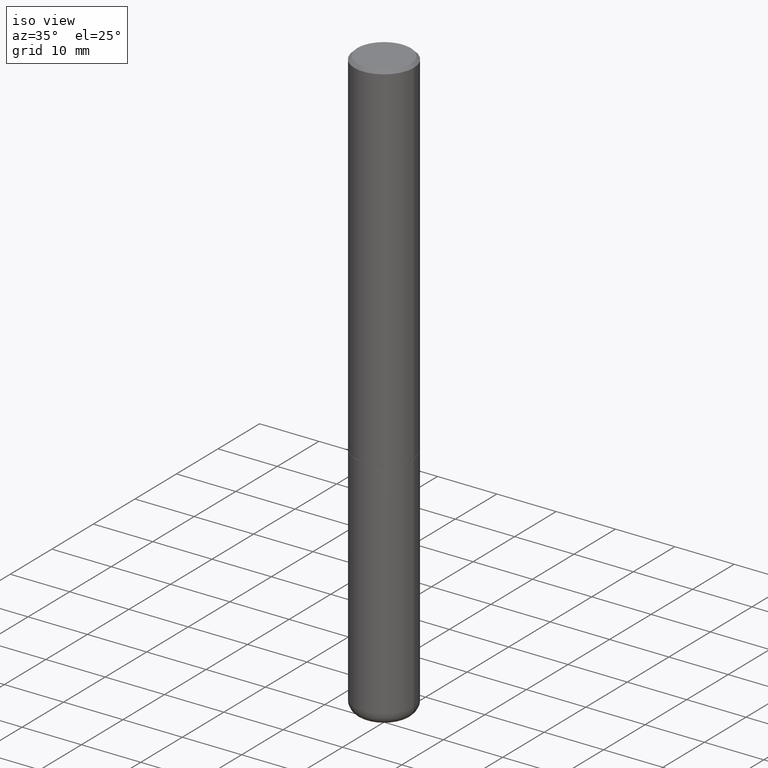
[diagram: clean part render]
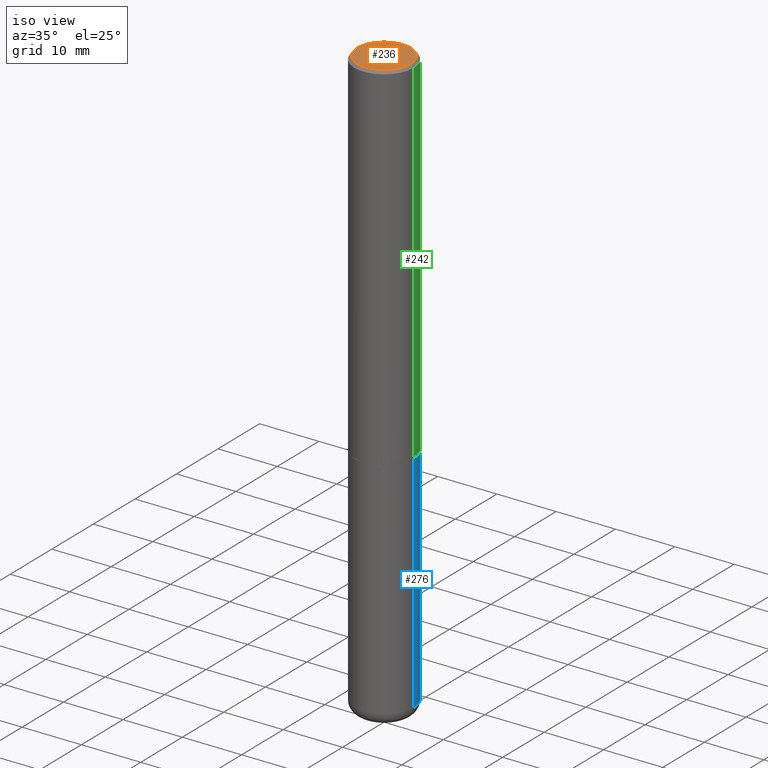
[diagram: same view with three faces highlighted in distinct colors, each labeled with its STEP entity id]
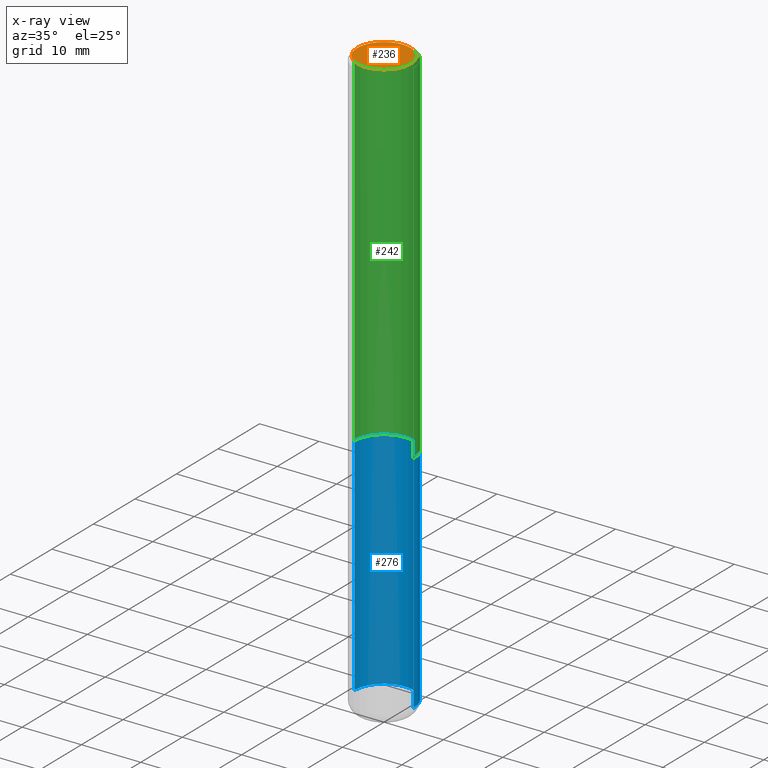
[diagram: x-ray of the same camera — body ghosted, the three highlighted faces saturated]
A machine part, iso view with three faces highlighted in distinct colors.
The next image is the same camera in x-ray (body ghosted, the three faces saturated) — at least one of them is partly hidden behind the body in this view.
Their STEP definitions:

[orange] entity #236 — the highlighted planar face has unit normal (0, -0, -1).
#23 = EDGE_CURVE ( 'NONE', #159, #183, #305, .T. ) ;
#37 = ORIENTED_EDGE ( 'NONE', *, *, #23, .T. ) ;
#50 = FACE_OUTER_BOUND ( 'NONE', #95, .T. ) ;
#56 = CARTESIAN_POINT ( 'NONE',  ( -0.1768500000000000905, 1.269851762937247647E-15, -6.402768735151492985E-17 ) ) ;
#68 = AXIS2_PLACEMENT_3D ( 'NONE', #315, #318, #348 ) ;
#77 = AXIS2_PLACEMENT_3D ( 'NONE', #170, #134, #398 ) ;
#87 = EDGE_CURVE ( 'NONE', #183, #159, #120, .T. ) ;
#95 = EDGE_LOOP ( 'NONE', ( #413, #37 ) ) ;
#120 = CIRCLE ( 'NONE', #365, 0.1768500000000000905 ) ;
#134 = DIRECTION ( 'NONE',  ( 2.438088387897960049E-29, -3.491481338843145188E-15, -1.000000000000000000 ) ) ;
#159 = VERTEX_POINT ( 'NONE', #198 ) ;
#170 = CARTESIAN_POINT ( 'NONE',  ( 1.234936949548816787E-15, 0.1768500000000000905, -6.494823184501636643E-16 ) ) ;
#179 = CARTESIAN_POINT ( 'NONE',  ( 1.565777121502829671E-45, -2.235514755570671047E-31, -6.402768735150616610E-17 ) ) ;
#183 = VERTEX_POINT ( 'NONE', #56 ) ;
#198 = CARTESIAN_POINT ( 'NONE',  ( 0.1768500000000000905, -1.316798864272042535E-15, -6.402768735149724211E-17 ) ) ;
#236 = ADVANCED_FACE ( 'NONE', ( #50 ), #254, .F. ) ;
#254 = PLANE ( 'NONE',  #77 ) ;
#270 = DIRECTION ( 'NONE',  ( 1.000000000000000000, -6.982962677686267499E-15, 4.874860244052827406E-29 ) ) ;
#304 = DIRECTION ( 'NONE',  ( -2.445468806185136597E-29, 3.491481338843145583E-15, 1.000000000000000000 ) ) ;
#305 = CIRCLE ( 'NONE', #68, 0.1768500000000000905 ) ;
#315 = CARTESIAN_POINT ( 'NONE',  ( 1.565777121502829671E-45, -2.235514755570671047E-31, -6.402768735150616610E-17 ) ) ;
#318 = DIRECTION ( 'NONE',  ( -2.445468806185136597E-29, 3.491481338843145583E-15, 1.000000000000000000 ) ) ;
#348 = DIRECTION ( 'NONE',  ( 1.000000000000000000, -6.982962677686267499E-15, 4.874860244052827406E-29 ) ) ;
#365 = AXIS2_PLACEMENT_3D ( 'NONE', #179, #304, #270 ) ;
#398 = DIRECTION ( 'NONE',  ( -1.000000000000000000, 6.982962677686265922E-15, -4.876176775795935793E-29 ) ) ;
#413 = ORIENTED_EDGE ( 'NONE', *, *, #87, .T. ) ;

[blue] entity #276 — the highlighted cylindrical surface (edge-blend (fillet) strip) has radius 5 mm, axis along (-0, 0, 1).
#6 = CARTESIAN_POINT ( 'NONE',  ( 0.1968500000000000250, -1.374596203102541608E-15, 9.598753983154300858E-30 ) ) ;
#28 = LINE ( 'NONE', #152, #395 ) ;
#29 = CARTESIAN_POINT ( 'NONE',  ( -0.1968500000000000250, -9.460676458793135485E-15, -2.362200000000000077 ) ) ;
#46 = VERTEX_POINT ( 'NONE', #246 ) ;
#65 = DIRECTION ( 'NONE',  ( -2.445468806185136597E-29, 3.491481338843145583E-15, 1.000000000000000000 ) ) ;
#90 = EDGE_CURVE ( 'NONE', #99, #162, #28, .T. ) ;
#92 = AXIS2_PLACEMENT_3D ( 'NONE', #147, #227, #363 ) ;
#99 = VERTEX_POINT ( 'NONE', #116 ) ;
#101 = LINE ( 'NONE', #6, #126 ) ;
#102 = DIRECTION ( 'NONE',  ( -2.445468806185136597E-29, 3.491481338843145583E-15, 1.000000000000000000 ) ) ;
#115 = DIRECTION ( 'NONE',  ( -2.445468806185136877E-29, 3.491481338843145188E-15, 1.000000000000000000 ) ) ;
#116 = CARTESIAN_POINT ( 'NONE',  ( -0.1968499999999998307, -1.207247907431475308E-14, -3.858300000000000285 ) ) ;
#126 = VECTOR ( 'NONE', #115, 39.37007874015748143 ) ;
#139 = EDGE_CURVE ( 'NONE', #341, #99, #268, .T. ) ;
#147 = CARTESIAN_POINT ( 'NONE',  ( 9.435352294904112142E-29, -1.347118244965850850E-14, -3.858300000000000285 ) ) ;
#152 = CARTESIAN_POINT ( 'NONE',  ( -0.1968500000000000250, 1.398703375343757393E-15, -9.682923725166783677E-30 ) ) ;
#162 = VERTEX_POINT ( 'NONE', #29 ) ;
#199 = CARTESIAN_POINT ( 'NONE',  ( 0.000000000000000000, 0.000000000000000000, 0.000000000000000000 ) ) ;
#203 = CIRCLE ( 'NONE', #283, 0.1968500000000000250 ) ;
#217 = CARTESIAN_POINT ( 'NONE',  ( 5.776686413970529753E-29, -8.247577218615279626E-15, -2.362200000000000077 ) ) ;
#225 = DIRECTION ( 'NONE',  ( 1.000000000000000000, -6.982962677686265922E-15, 4.876176775795935793E-29 ) ) ;
#227 = DIRECTION ( 'NONE',  ( -2.445468806185136597E-29, 3.491481338843145583E-15, 1.000000000000000000 ) ) ;
#233 = ORIENTED_EDGE ( 'NONE', *, *, #90, .T. ) ;
#240 = DIRECTION ( 'NONE',  ( 1.000000000000000000, -6.982962677686267499E-15, 0.000000000000000000 ) ) ;
#246 = CARTESIAN_POINT ( 'NONE',  ( 0.1968500000000000250, -9.622173421717821235E-15, -2.362200000000000077 ) ) ;
#261 = EDGE_CURVE ( 'NONE', #341, #46, #101, .T. ) ;
#266 = ORIENTED_EDGE ( 'NONE', *, *, #261, .F. ) ;
#268 = CIRCLE ( 'NONE', #92, 0.1968500000000000250 ) ;
#276 = ADVANCED_FACE ( 'NONE', ( #408 ), #286, .T. ) ;
#277 = EDGE_LOOP ( 'NONE', ( #282, #233, #302, #266 ) ) ;
#281 = EDGE_CURVE ( 'NONE', #46, #162, #203, .T. ) ;
#282 = ORIENTED_EDGE ( 'NONE', *, *, #139, .T. ) ;
#283 = AXIS2_PLACEMENT_3D ( 'NONE', #217, #65, #240 ) ;
#286 = CYLINDRICAL_SURFACE ( 'NONE', #354, 0.1968500000000000250 ) ;
#302 = ORIENTED_EDGE ( 'NONE', *, *, #281, .F. ) ;
#341 = VERTEX_POINT ( 'NONE', #402 ) ;
#354 = AXIS2_PLACEMENT_3D ( 'NONE', #199, #102, #225 ) ;
#363 = DIRECTION ( 'NONE',  ( 1.000000000000000000, -6.982962677686267499E-15, 0.000000000000000000 ) ) ;
#395 = VECTOR ( 'NONE', #412, 39.37007874015748143 ) ;
#402 = CARTESIAN_POINT ( 'NONE',  ( 0.1968499999999998307, -1.484577865276104695E-14, -3.858300000000000285 ) ) ;
#408 = FACE_OUTER_BOUND ( 'NONE', #277, .T. ) ;
#412 = DIRECTION ( 'NONE',  ( -2.445468806185136877E-29, 3.491481338843145188E-15, 1.000000000000000000 ) ) ;

[green] entity #242 — the highlighted cylindrical surface (edge-blend (fillet) strip) has radius 5 mm, axis along (-0, 0, 1).
#25 = CARTESIAN_POINT ( 'NONE',  ( 0.000000000000000000, 0.000000000000000000, 0.000000000000000000 ) ) ;
#26 = EDGE_CURVE ( 'NONE', #407, #260, #389, .T. ) ;
#30 = CYLINDRICAL_SURFACE ( 'NONE', #171, 0.1968500000000001360 ) ;
#34 = VECTOR ( 'NONE', #298, 39.37007874015748143 ) ;
#55 = CIRCLE ( 'NONE', #322, 0.1968500000000000250 ) ;
#58 = ORIENTED_EDGE ( 'NONE', *, *, #287, .F. ) ;
#83 = CARTESIAN_POINT ( 'NONE',  ( 0.1968500000000000250, -1.420318657638189122E-15, -0.02000000000000004205 ) ) ;
#94 = VERTEX_POINT ( 'NONE', #377 ) ;
#131 = DIRECTION ( 'NONE',  ( 1.000000000000000000, -6.982962677686265922E-15, 0.000000000000000000 ) ) ;
#143 = CIRCLE ( 'NONE', #241, 0.1968500000000002748 ) ;
#153 = VERTEX_POINT ( 'NONE', #83 ) ;
#171 = AXIS2_PLACEMENT_3D ( 'NONE', #25, #175, #191 ) ;
#173 = CARTESIAN_POINT ( 'NONE',  ( 4.890937612370283668E-31, -6.982962677686305168E-17, -0.02000000000000004205 ) ) ;
#175 = DIRECTION ( 'NONE',  ( -2.445468806185136597E-29, 3.491481338843145583E-15, 1.000000000000000000 ) ) ;
#177 = VECTOR ( 'NONE', #275, 39.37007874015748143 ) ;
#184 = EDGE_CURVE ( 'NONE', #153, #260, #55, .T. ) ;
#189 = CARTESIAN_POINT ( 'NONE',  ( -0.1968500000000001360, 1.398703375343758182E-15, -9.682923725166790684E-30 ) ) ;
#191 = DIRECTION ( 'NONE',  ( 1.000000000000000000, -6.982962677686266711E-15, 4.876176775795935793E-29 ) ) ;
#200 = LINE ( 'NONE', #396, #34 ) ;
#207 = EDGE_CURVE ( 'NONE', #94, #407, #143, .T. ) ;
#219 = ORIENTED_EDGE ( 'NONE', *, *, #207, .T. ) ;
#241 = AXIS2_PLACEMENT_3D ( 'NONE', #263, #288, #328 ) ;
#242 = ADVANCED_FACE ( 'NONE', ( #401 ), #30, .T. ) ;
#249 = ORIENTED_EDGE ( 'NONE', *, *, #184, .F. ) ;
#256 = EDGE_LOOP ( 'NONE', ( #219, #274, #249, #58 ) ) ;
#260 = VERTEX_POINT ( 'NONE', #329 ) ;
#263 = CARTESIAN_POINT ( 'NONE',  ( 5.774240945164344150E-29, -8.244085737276435042E-15, -2.361199999999999743 ) ) ;
#274 = ORIENTED_EDGE ( 'NONE', *, *, #26, .T. ) ;
#275 = DIRECTION ( 'NONE',  ( -2.445468806185136877E-29, 3.491481338843145188E-15, 1.000000000000000000 ) ) ;
#287 = EDGE_CURVE ( 'NONE', #94, #153, #200, .T. ) ;
#288 = DIRECTION ( 'NONE',  ( -2.445468806185136597E-29, 3.491481338843145583E-15, 1.000000000000000000 ) ) ;
#298 = DIRECTION ( 'NONE',  ( -2.445468806185136877E-29, 3.491481338843145188E-15, 1.000000000000000000 ) ) ;
#322 = AXIS2_PLACEMENT_3D ( 'NONE', #173, #335, #131 ) ;
#328 = DIRECTION ( 'NONE',  ( 1.000000000000000000, -6.982962677686264344E-15, 0.000000000000000000 ) ) ;
#329 = CARTESIAN_POINT ( 'NONE',  ( -0.1968500000000000250, 1.304766576325678705E-15, -0.02000000000000004205 ) ) ;
#335 = DIRECTION ( 'NONE',  ( -2.445468806185136597E-29, 3.491481338843145583E-15, 1.000000000000000000 ) ) ;
#376 = CARTESIAN_POINT ( 'NONE',  ( -0.1968500000000002748, -2.758254306682887043E-15, -2.361199999999999743 ) ) ;
#377 = CARTESIAN_POINT ( 'NONE',  ( 0.1968500000000002748, -9.618681940378978228E-15, -2.361199999999999743 ) ) ;
#389 = LINE ( 'NONE', #189, #177 ) ;
#396 = CARTESIAN_POINT ( 'NONE',  ( 0.1968500000000001360, -1.374596203102542594E-15, 9.598753983154306463E-30 ) ) ;
#401 = FACE_OUTER_BOUND ( 'NONE', #256, .T. ) ;
#407 = VERTEX_POINT ( 'NONE', #376 ) ;